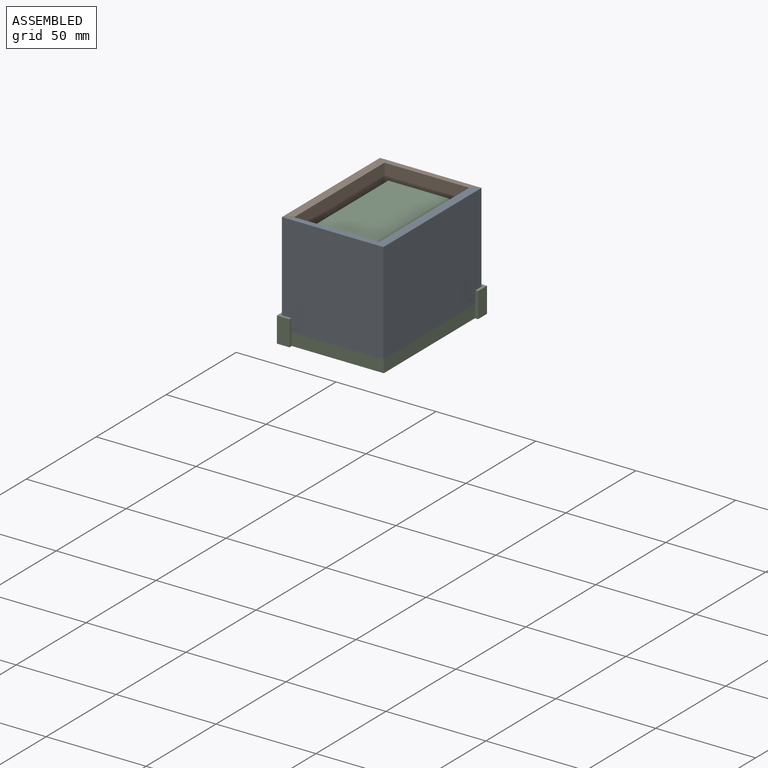
[diagram: assembled view]
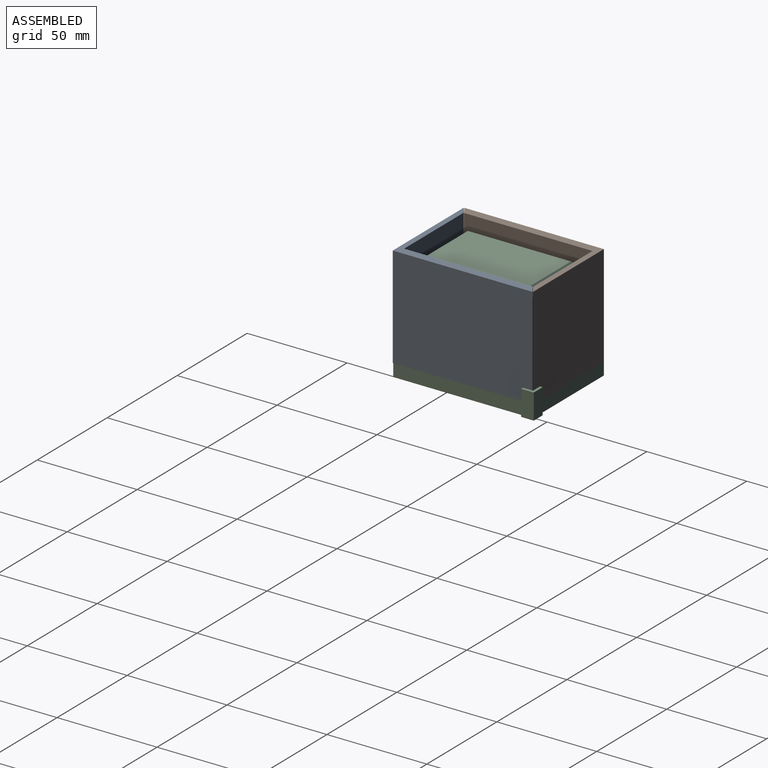
[diagram: assembled view, second angle]
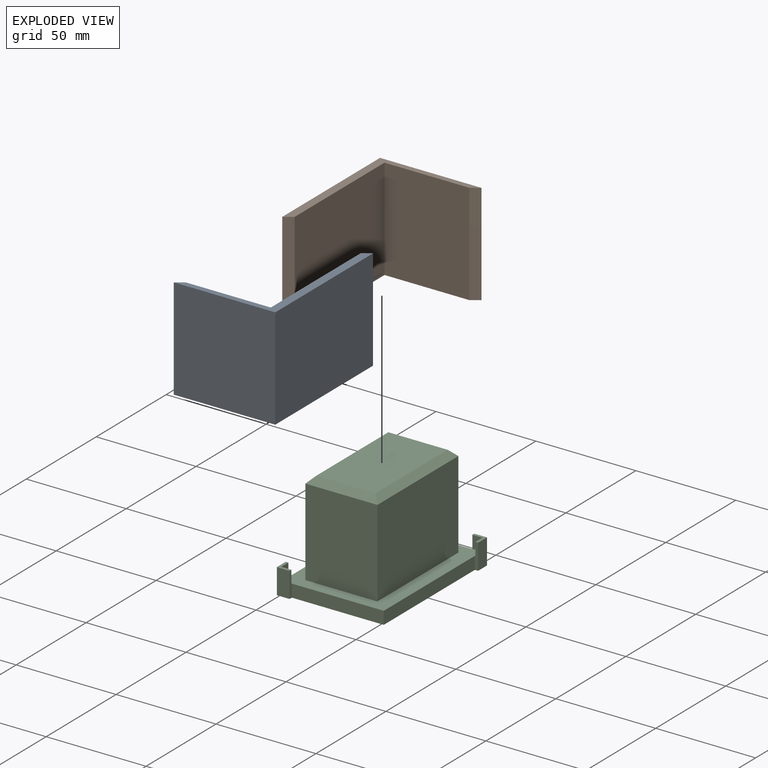
[diagram: exploded view]
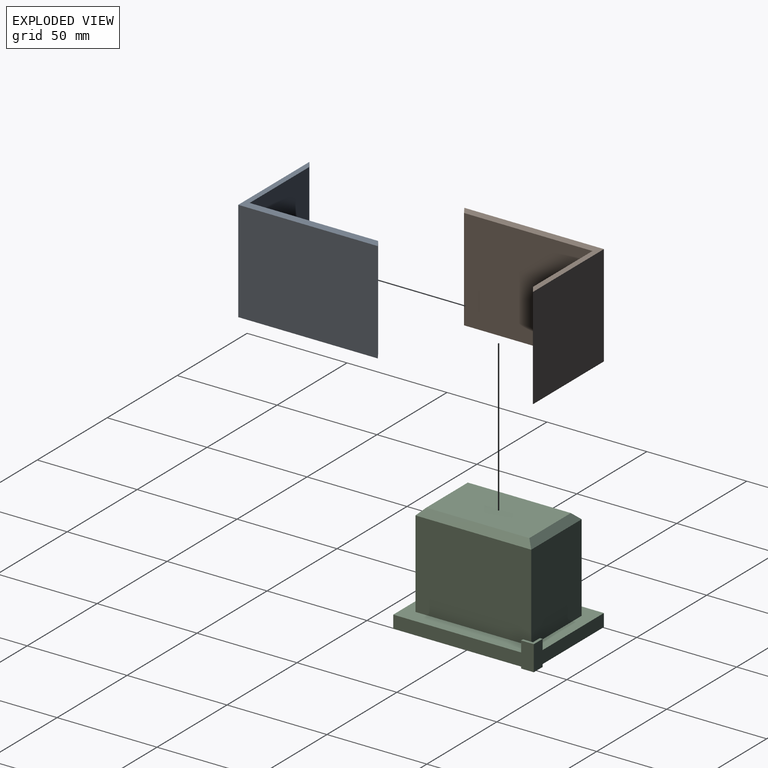
[diagram: exploded view, second angle]
ASSEMBLY  parts=3 mates=4
PART A: 8 faces, bbox 50.8x69.9x50.8 mm
  f0: plane 69.85x50.8mm, normal (0,0,1), area 412.1mm2, adj f2,f3,f4,f5,f6,f7
  f1: plane 69.85x50.8mm, normal (0,0,-1), area 412.1mm2, adj f2,f3,f4,f5,f6,f7
  f2: plane 69.85x50.8mm, normal (1,0,0), area 3548.4mm2, adj f0,f1,f3,f6
  f3: plane 50.8x50.8mm, normal (0,-1,0), area 2580.6mm2, adj f0,f1,f2,f7
  f4: plane 64.26x50.8mm, normal (-1,0,0), area 3264.5mm2, adj f0,f1,f5,f6
  f5: plane 50.8x42.39mm, normal (0,1,0), area 2153.5mm2, adj f0,f1,f4,f7
  f6: plane 50.8x4.2mm, normal (-0.55,0.83,0), area 256.4mm2, adj f0,f1,f2,f4
  f7: plane 50.8x4.2mm, normal (-0.55,0.83,0), area 256.4mm2, adj f0,f1,f3,f5
PART B: same geometry as A
PART C: 29 faces, bbox 54x73.1x53.2 mm
  f0: plane 12.7x1.6mm, normal (-1,0,0), area 18.7mm2, adj f4,f14,f15,f19,f20,f28
  f1: plane 12.7x1.6mm, normal (1,0,0), area 18.7mm2, adj f2,f4,f14,f23,f24,f26
  f2: plane 46.05x6.35mm, normal (0,-1,0), area 292.4mm2, adj f1,f4,f14,f16
  f3: plane 65.1x6.35mm, normal (-1,0,0), area 413.4mm2, adj f4,f14,f15,f21
  f4: plane 70.36x51.31mm, normal (0,0,1), area 1466mm2, adj f0,f1,f2,f3,f6,f7,f8,f9
  f5: plane 51.56x29.69mm, normal (0,0,1), area 1531mm2, adj f10,f11,f12,f13
  f6: plane 43.64x36.04mm, normal (0,1,0), area 1572.8mm2, adj f4,f7,f8,f10
  f7: plane 57.91x43.64mm, normal (-1,0,0), area 2527.1mm2, adj f4,f6,f9,f12
  f8: plane 57.91x43.64mm, normal (1,0,0), area 2527.1mm2, adj f4,f6,f9,f11
  f9: plane 43.64x36.04mm, normal (0,-1,0), area 1572.8mm2, adj f4,f7,f8,f13
  f10: plane 36.04x3.18mm, normal (0,0.71,0.71), area 147.6mm2, adj f5,f6,f11,f12
  f11: plane 57.91x3.18mm, normal (0.71,0,0.71), area 245.8mm2, adj f5,f8,f10,f13
  f12: plane 57.91x3.18mm, normal (-0.71,0,0.71), area 245.8mm2, adj f5,f7,f10,f13
  f13: plane 36.04x3.18mm, normal (0,-0.71,0.71), area 147.6mm2, adj f5,f9,f11,f12
  f14: plane 73.05x54mm, normal (0,0,-1), area 3583.9mm2, adj f0,f1,f2,f3,f15,f16,f17,f18
  f15: plane 46.05x6.35mm, normal (0,1,0), area 292.4mm2, adj f0,f3,f4,f14
  f16: plane 65.1x6.35mm, normal (1,0,0), area 413.4mm2, adj f2,f4,f14,f17
  f17: plane 12.7x1.6mm, normal (0,-1,0), area 18.7mm2, adj f4,f14,f16,f18,f20,f27
  f18: plane 12.7x6.35mm, normal (1,0,0), area 80.6mm2, adj f14,f17,f19,f20
  f19: plane 12.7x6.35mm, normal (0,1,0), area 80.6mm2, adj f0,f14,f18,f20
  f20: plane 6.35x6.35mm, normal (0,0,1), area 15.3mm2, adj f0,f17,f18,f19,f27,f28
  f21: plane 12.7x1.6mm, normal (0,1,0), area 18.7mm2, adj f3,f4,f14,f22,f24,f25
  f22: plane 12.7x6.35mm, normal (-1,0,0), area 80.6mm2, adj f14,f21,f23,f24
  f23: plane 12.7x6.35mm, normal (0,-1,0), area 80.6mm2, adj f1,f14,f22,f24
  f24: plane 6.35x6.35mm, normal (0,0,1), area 15.3mm2, adj f1,f21,f22,f23,f25,f26
  f25: plane 6.35x5mm, normal (1,0,0), area 31.8mm2, adj f4,f21,f24,f26
  f26: plane 6.35x5mm, normal (0,1,0), area 31.8mm2, adj f1,f4,f24,f25
  f27: plane 6.35x5mm, normal (-1,0,0), area 31.8mm2, adj f4,f17,f20,f28
  f28: plane 6.35x5mm, normal (0,-1,0), area 31.8mm2, adj f0,f4,f20,f27
PLACE A t=(-22.24,0.06,-0.5)mm
PLACE B rot(axis=(0,0,1),180deg) t=(-22.24,0.32,-0.5)mm
PLACE C t=(-22.24,0.32,-6.85)mm fixed
MATE planar C.f16 <-> A.f2  axis (1,0,0) through (3.16,-34.61,-6.85)mm
MATE planar A.f1 <-> C.f4  axis (0,0,1) through (-1.04,-32.07,-0.5)mm
MATE planar A.f3 <-> C.f26  axis (0,-1,0) through (-47.64,-34.86,-0.5)mm
MATE planar B.f1 <-> C.f4  axis (0,0,-1) through (-47.64,35.24,-0.5)mm
